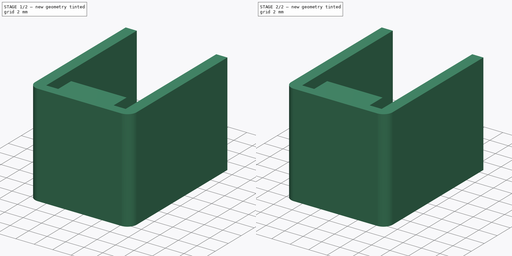
[diagram: build sequence overview — one tinted view per stage of 2, left to right]
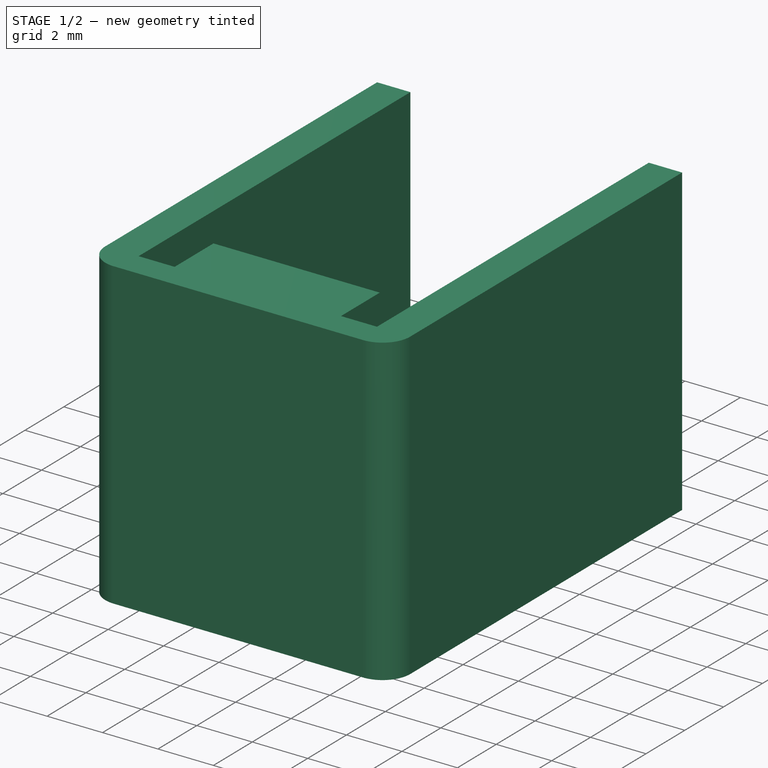
[diagram: stage 1 of 2 — iso view after this stage's code; geometry added in this stage tinted green]
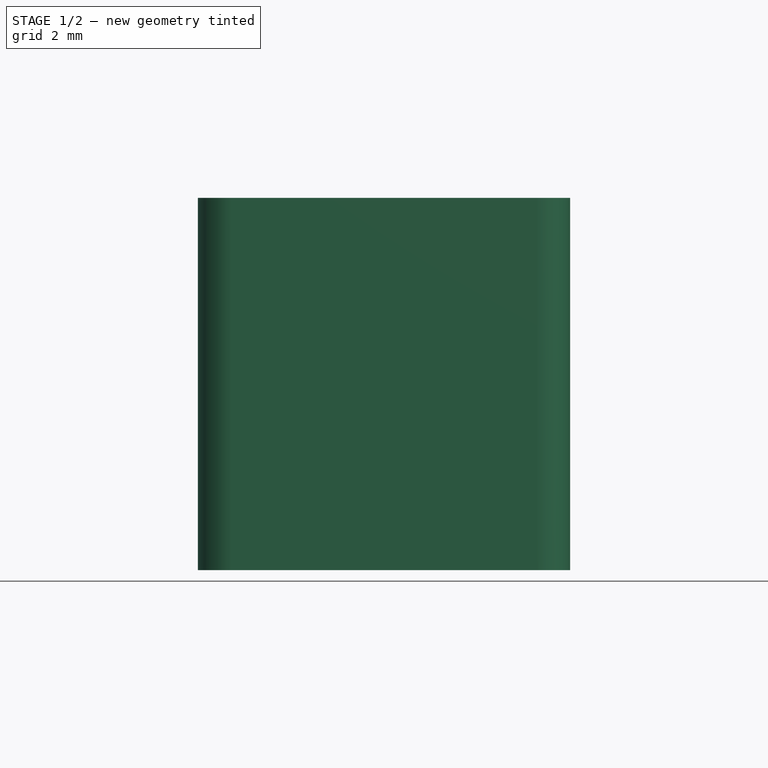
[diagram: stage 1 of 2 — front view after this stage's code; geometry added in this stage tinted green]
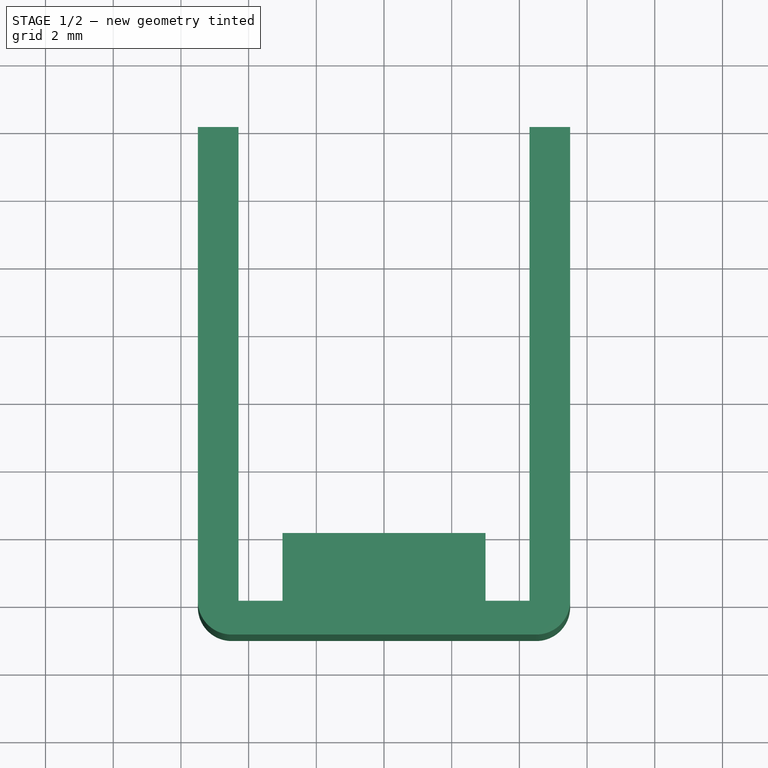
[diagram: stage 1 of 2 — top view after this stage's code; geometry added in this stage tinted green]
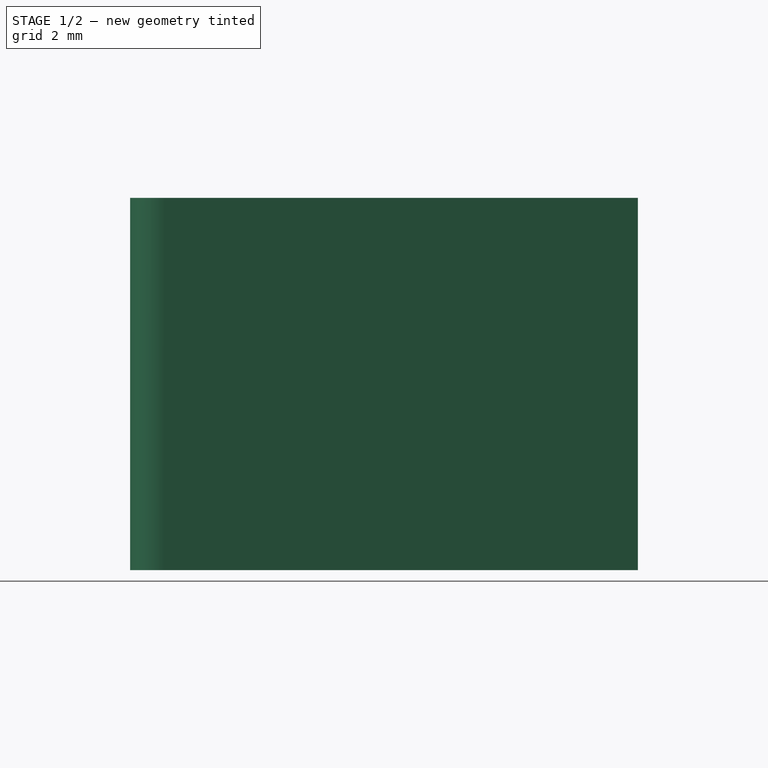
[diagram: stage 1 of 2 — right view after this stage's code; geometry added in this stage tinted green]
FCSTD DOCUMENT  (FreeCAD 0.18.4R)
Label: screwterminal
License: All rights reserved
LicenseURL: http://en.wikipedia.org/wiki/All_rights_reserved
objects: Sketcher::SketchObject×3, PartDesign::Pad×1, PartDesign::Pocket×1, PartDesign::Mirrored×1, PartDesign::Hole×1, PartDesign::Body×1
note: 11 computed .brp shape members not serialized (recipe doc carries the construction recipe); baked Part::Feature solids carry a one-line shape summary decoded from their .brp

FEATURE [Sketcher::SketchObject] Sketch
  MapMode = 3
  Placement = pos=(0,0,0) rot=(-1,0,0;1.5708rad)
  Support = -> [Sketch]
  sketch-geometry (14):
    g0: LineSegment StartX=-4.3 StartY=0 StartZ=0 EndX=-4.3 EndY=14 EndZ=0
    g1: LineSegment StartX=-4.3 StartY=14 StartZ=0 EndX=-3 EndY=14 EndZ=0
    g2: LineSegment StartX=-3 StartY=14 StartZ=0 EndX=-3 EndY=12 EndZ=0
    g3: LineSegment StartX=-3 StartY=12 StartZ=0 EndX=3 EndY=12 EndZ=0
    g4: LineSegment StartX=3 StartY=12 StartZ=0 EndX=3 EndY=14 EndZ=0
    g5: LineSegment StartX=3 StartY=14 StartZ=0 EndX=4.3 EndY=14 EndZ=0
    g6: LineSegment StartX=4.3 StartY=14 StartZ=0 EndX=4.3 EndY=0 EndZ=0
    g7: LineSegment StartX=4.3 StartY=0 StartZ=0 EndX=5.5 EndY=0 EndZ=0
    g8: LineSegment StartX=5.5 StartY=0 StartZ=0 EndX=5.5 EndY=14 EndZ=0
    g9: LineSegment StartX=4.5 StartY=15 StartZ=0 EndX=-4.5 EndY=15 EndZ=0
    g10: LineSegment StartX=-5.5 StartY=14 StartZ=0 EndX=-5.5 EndY=0 EndZ=0
    g11: LineSegment StartX=-5.5 StartY=0 StartZ=0 EndX=-4.3 EndY=0 EndZ=0
    g12: ArcOfCircle CenterX=4.5 CenterY=14 CenterZ=0 NormalX=0 NormalY=0 NormalZ=1 AngleXU=0 Radius=1 StartAngle=-1.02229e-11 EndAngle=1.5708
    g13: ArcOfCircle CenterX=-4.5 CenterY=14 CenterZ=0 NormalX=0 NormalY=0 NormalZ=1 AngleXU=0 Radius=1 StartAngle=1.5708 EndAngle=3.14159
  constraints (37):
    c: PointOnObject(g0,g-1)
    c: Vertical(g0)
    c: Coincident(g0,g1)
    c: Horizontal(g1)
    c: Coincident(g1,g2)
    c: Vertical(g2)
    c: Coincident(g2,g3)
    c: Coincident(g3,g4)
    c: Vertical(g4)
    c: Coincident(g4,g5)
    c: Coincident(g5,g6)
    c: PointOnObject(g6,g-1)
    c: Coincident(g6,g7)
    c: Horizontal(g7)
    c: Coincident(g7,g8)
    c: Vertical(g8)
    c: PointOnObject(g10,g-1)
    c: Vertical(g10)
    c: Coincident(g10,g11)
    c: Coincident(g11,g0)
    c: DistanceX(g10,g0) = 1.2
    c: Equal(g11,g7)
    c: DistanceX(g3,g3) = 6
    c: Symmetric(g3,g2,g-2)
    c: Horizontal(g5)
    c: DistanceY(g2,g2) = 2
    c: Tangent(g8,g12) = -1.5708
    c: Tangent(g9,g12) = -1.5708
    c: Tangent(g9,g13) = -1.5708
    c: Tangent(g10,g13) = -1.5708
    c: DistanceY(g7,g9) = 15
    c: Horizontal(g9)
    c: Symmetric(g8,g10,g-2)
    c: Symmetric(g5,g0,g-2)
    c: DistanceX(g10,g8) = 11
    c: Horizontal(g0,g10)
    c: Radius(g13) = 1
FEATURE [PartDesign::Pad] Pad
  Length = 11
  Length2 = 100
  Midplane = true
  Placement = pos=(0,0,0) rot=(-1,0,0;1.5708rad)
  Profile = -> Sketch
  Refine = true
  Type = 0
FEATURE [Sketcher::SketchObject] Sketch001
  ExternalGeometry = -> [Pad]
  MapMode = 5
  Placement = pos=(0,0,0) rot=(0.57735,0.57735,0.57735;2.0944rad)
  Support = -> [YZ_Plane]
  sketch-geometry (8):
    g0: LineSegment StartX=0 StartY=0 StartZ=0 EndX=3 EndY=0 EndZ=0
    g1: LineSegment StartX=3 StartY=0 StartZ=0 EndX=3 EndY=1.7 EndZ=0
    g2: LineSegment StartX=3 StartY=1.7 StartZ=0 EndX=0 EndY=1.7 EndZ=0
    g3: LineSegment StartX=0 StartY=1.7 StartZ=0 EndX=0 EndY=0 EndZ=0
    g4: LineSegment StartX=5.5 StartY=-1.1e-15 StartZ=0 EndX=3 EndY=-1.1e-15 EndZ=0
    g5: LineSegment StartX=3 StartY=-1.1e-15 StartZ=0 EndX=3 EndY=-0.7 EndZ=0
    g6: LineSegment StartX=3 StartY=-0.7 StartZ=0 EndX=5.5 EndY=-0.7 EndZ=0
    g7: LineSegment StartX=5.5 StartY=-0.7 StartZ=0 EndX=5.5 EndY=-1.1e-15 EndZ=0
  constraints (22):
    c: Coincident(g0,g1)
    c: Coincident(g1,g2)
    c: Coincident(g2,g3)
    c: Coincident(g3,g0)
    c: Horizontal(g0)
    c: Horizontal(g2)
    c: Vertical(g1)
    c: Vertical(g3)
    c: Coincident(g0,g-1)
    c: DistanceX(g2,g2) = 3
    c: DistanceY(g1,g1) = 1.7
    c: Coincident(g4,g5)
    c: Coincident(g5,g6)
    c: Coincident(g6,g7)
    c: Coincident(g7,g4)
    c: Horizontal(g4)
    c: Horizontal(g6)
    c: Vertical(g5)
    c: Vertical(g7)
    c: Coincident(g4,g-3)
    c: DistanceY(g5,g5) = 0.7
    c: Vertical(g5,g1)
FEATURE [PartDesign::Pocket] Pocket
  BaseFeature = -> Pad
  Length = 5
  Length2 = 100
  Midplane = true
  Placement = pos=(0,0,0) rot=(1,0,0;3.14159rad)
  Profile = -> Sketch001
  Refine = true
  Type = 1
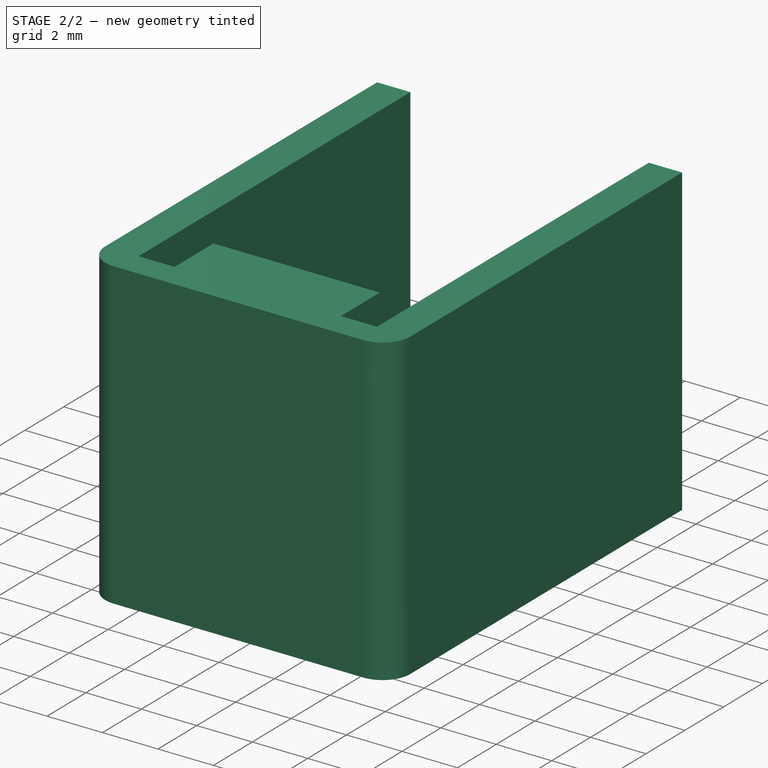
[diagram: stage 2 of 2 — iso view after this stage's code; geometry added in this stage tinted green]
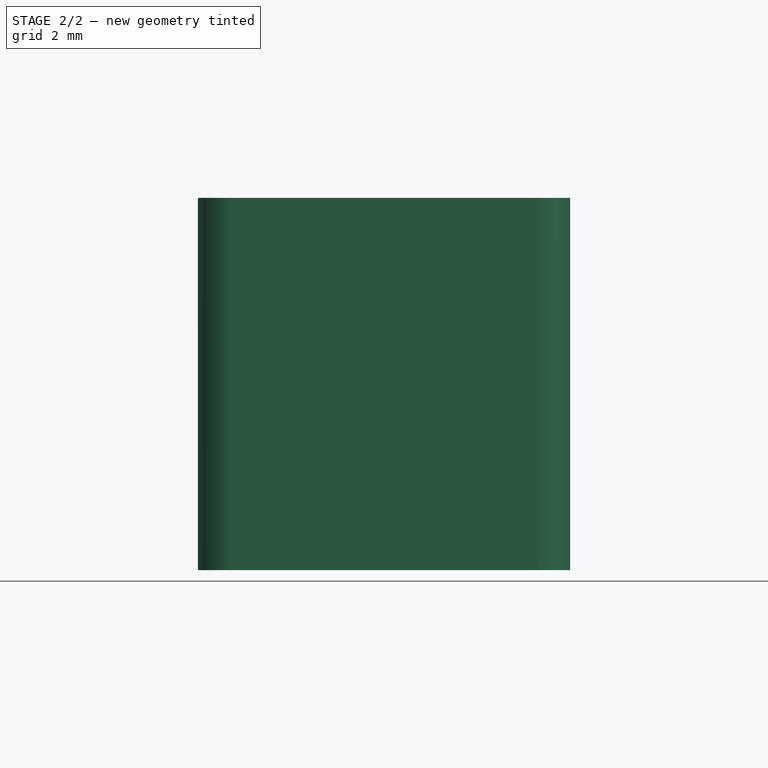
[diagram: stage 2 of 2 — front view after this stage's code; geometry added in this stage tinted green]
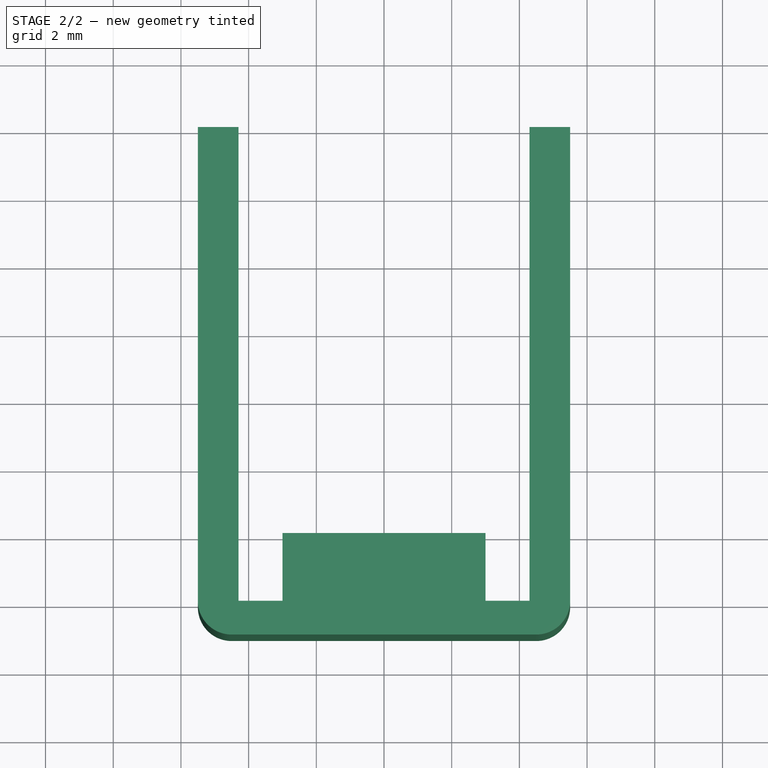
[diagram: stage 2 of 2 — top view after this stage's code; geometry added in this stage tinted green]
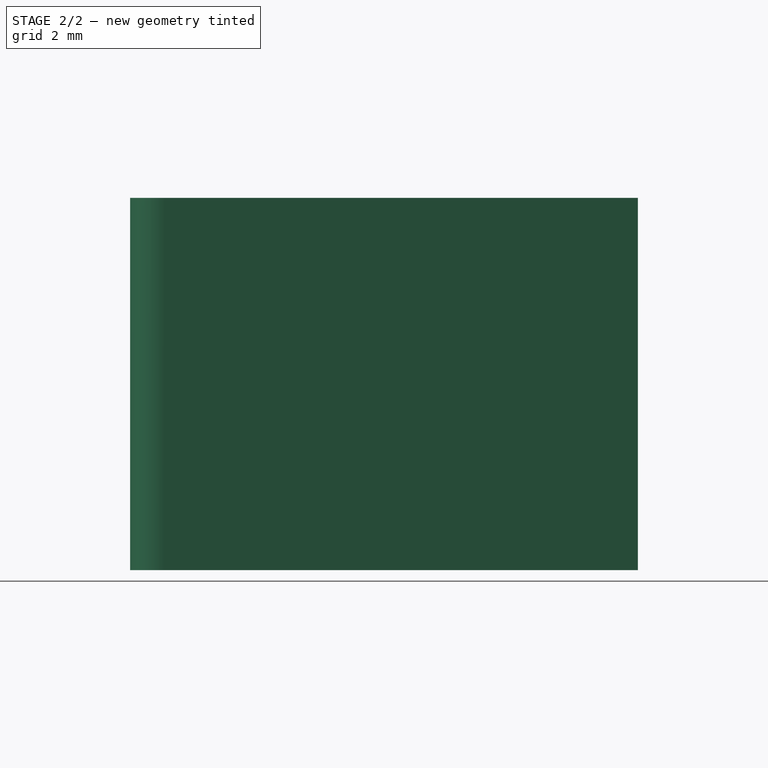
[diagram: stage 2 of 2 — right view after this stage's code; geometry added in this stage tinted green]
FEATURE [PartDesign::Mirrored] Mirrored
  BaseFeature = -> Pocket
  MirrorPlane = -> XY_Plane
  Originals = -> [Pocket]
  Placement = pos=(0,0,0) rot=(1,0,0;3.14159rad)
  Refine = true
FEATURE [Sketcher::SketchObject] Sketch003
  MapMode = 5
  Placement = pos=(0,0,0) rot=(1,0,0;1.5708rad)
  Support = -> [XZ_Plane]
  sketch-geometry (1):
    g0: Circle CenterX=0 CenterY=0 CenterZ=0 NormalX=0 NormalY=0 NormalZ=1 AngleXU=0 Radius=2
  constraints (2):
    c: Coincident(g0,g-1)
    c: Radius(g0) = 2
FEATURE [PartDesign::Hole] Hole
  BaseFeature = -> Mirrored
  Depth = 25
  DepthType = 1
  Diameter = 6
  DrillPoint = 1
  DrillPointAngle = 118
  HoleCutCountersinkAngle = 90
  HoleCutDepth = 0
  HoleCutDiameter = 0
  HoleCutType = 0
  ModelActualThread = false
  Placement = pos=(0,0,0) rot=(1,0,0;3.14159rad)
  Profile = -> Sketch003
  Refine = true
  Tapered = false
  TaperedAngle = 90
  ThreadAngle = 0
  ThreadClass = 0
  ThreadCutOffInner = 0
  ThreadCutOffOuter = 0
  ThreadDirection = 0
  ThreadFit = 0
  ThreadPitch = 0
  ThreadSize = 0
  ThreadType = 0
  Threaded = false
FEATURE [PartDesign::Body] Body
  Group = -> [Sketch,Pad,Sketch001,Pocket,Mirrored,Sketch003,Hole]
  Origin = -> Origin
  Tip = -> Pad
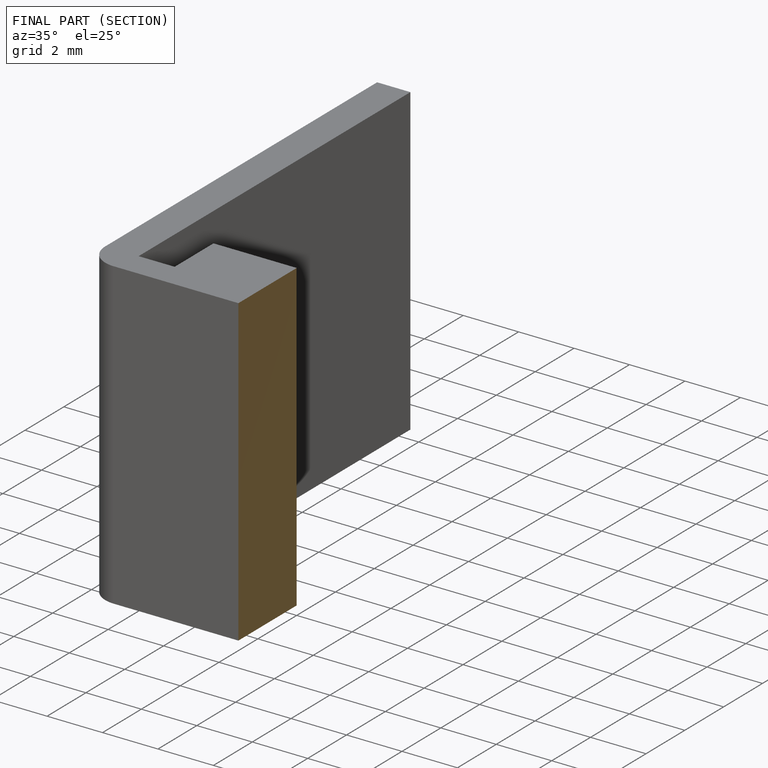
[diagram: finished part — half-section view (interior)]
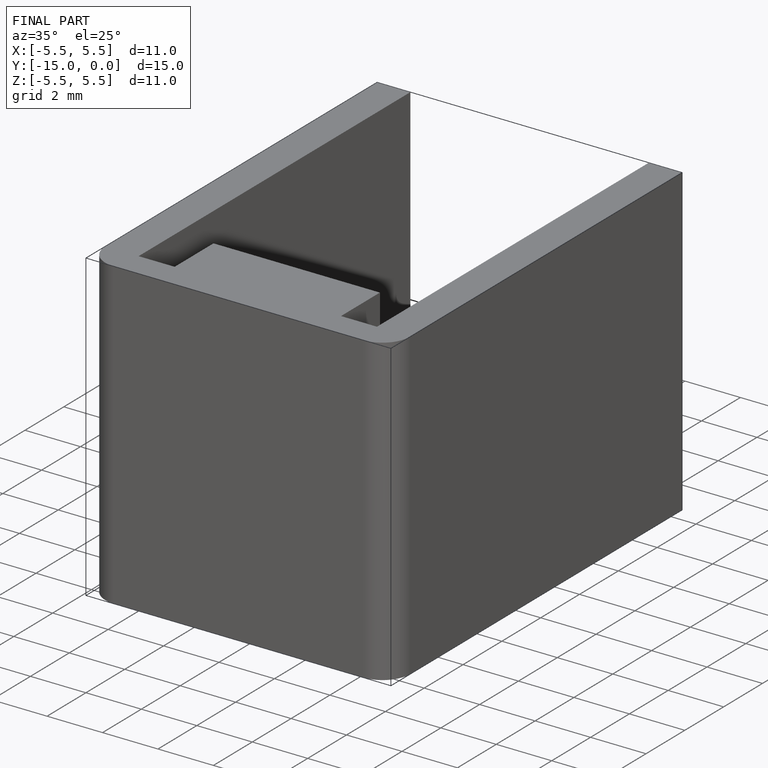
[diagram: finished part — iso view with bounding-box wireframe]
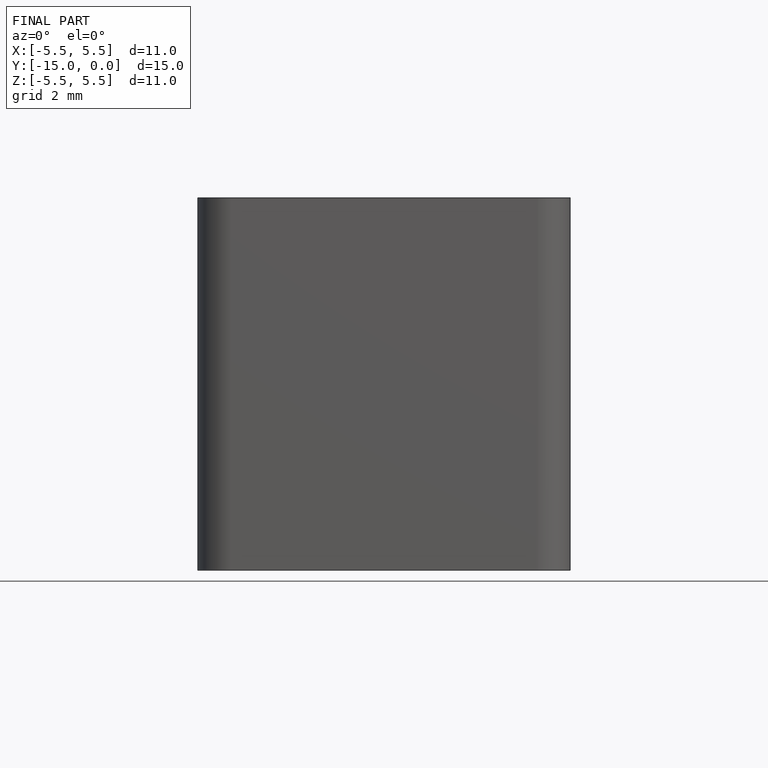
[diagram: finished part — front view with bounding-box wireframe]
